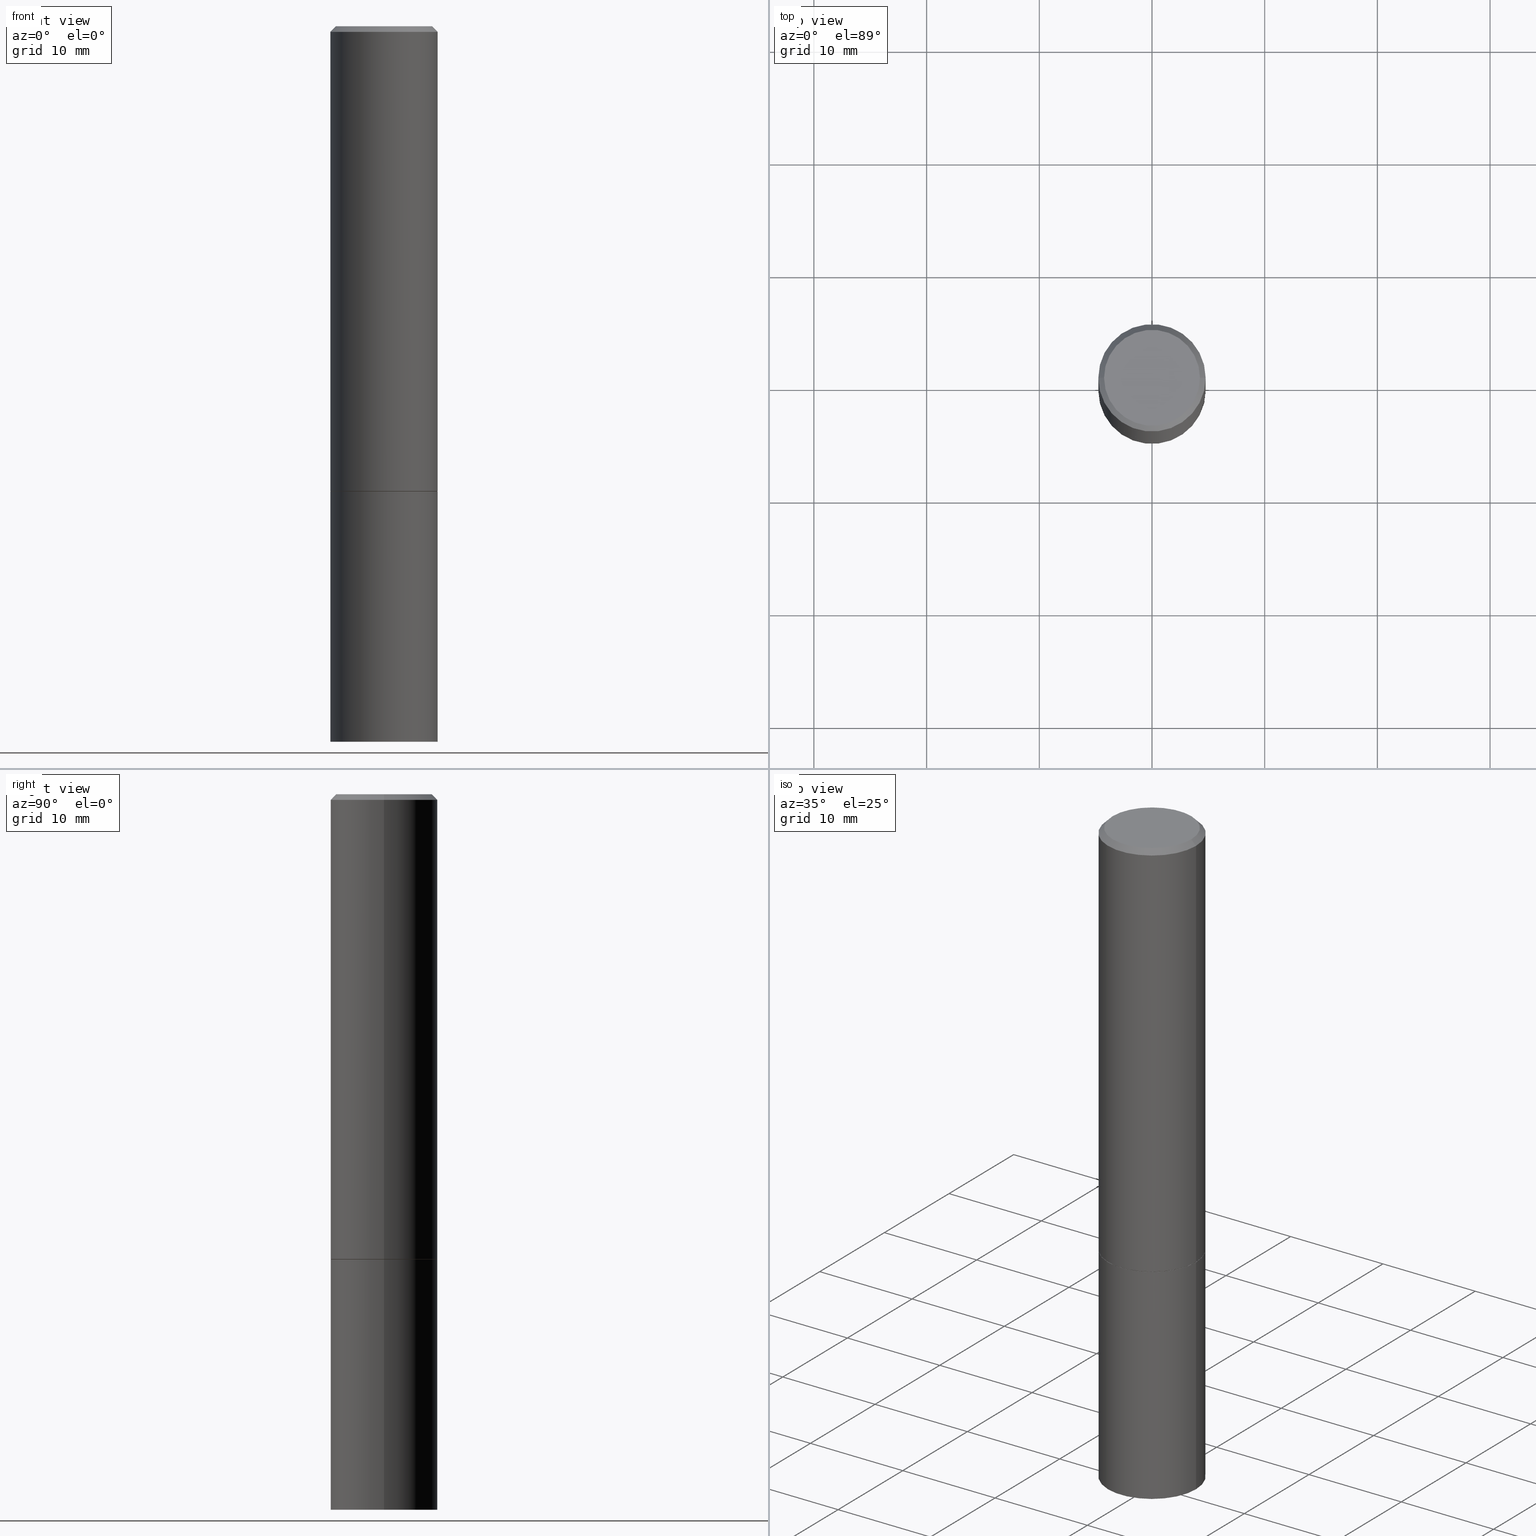
[diagram: canonical four-view strip — front | top / right | iso, engineering-drawing reading convention]
A machine part, canonical four-view strip (front | top / right | iso — engineering-drawing reading convention). The complete STEP part file that produces these views, byte-faithful:
ISO-10303-21;
HEADER;
FILE_DESCRIPTION (( 'STEP AP203' ),
    '1' );
FILE_NAME ('35309.STEP',
    '2024-02-27T18:35:04',
    ( '' ),
    ( '' ),
    'SwSTEP 2.0',
    'SolidWorks 2023',
    '' );
FILE_SCHEMA (( 'CONFIG_CONTROL_DESIGN' ));
ENDSEC;

DATA;
#1 = DATE_AND_TIME ( #145, #241 ) ;
#2 = FACE_OUTER_BOUND ( 'NONE', #92, .T. ) ;
#3 = UNCERTAINTY_MEASURE_WITH_UNIT (LENGTH_MEASURE( 1.000000000000000082E-05 ), #106, 'distance_accuracy_value', 'NONE');
#4 = ORIENTED_EDGE ( 'NONE', *, *, #20, .T. ) ;
#5 = DATE_TIME_ROLE ( 'classification_date' ) ;
#6 = EDGE_CURVE ( 'NONE', #249, #255, #78, .T. ) ;
#7 = ADVANCED_FACE ( 'NONE', ( #213 ), #359, .T. ) ;
#8 = CARTESIAN_POINT ( 'NONE',  ( 3.973886810050848091E-29, -5.673657175620113002E-15, -1.625000000000000222 ) ) ;
#9 = LOCAL_TIME ( 13, 35, 4.000000000000000000, #155 ) ;
#10 = APPROVAL_DATE_TIME ( #27, #267 ) ;
#11 = ORIENTED_EDGE ( 'NONE', *, *, #47, .F. ) ;
#12 = ORIENTED_EDGE ( 'NONE', *, *, #82, .T. ) ;
#13 = PERSON_AND_ORGANIZATION ( #200, #164 ) ;
#14 = EDGE_LOOP ( 'NONE', ( #125, #347, #124, #352 ) ) ;
#15 = DIRECTION ( 'NONE',  ( -2.445468806185136597E-29, 3.491481338843145583E-15, 1.000000000000000000 ) ) ;
#16 = ORIENTED_EDGE ( 'NONE', *, *, #82, .F. ) ;
#17 = CARTESIAN_POINT ( 'NONE',  ( 0.000000000000000000, 0.000000000000000000, 0.000000000000000000 ) ) ;
#18 = CONICAL_SURFACE ( 'NONE', #73, 0.1864999999999999714, 0.7853981633975678500 ) ;
#19 = EDGE_CURVE ( 'NONE', #255, #249, #295, .T. ) ;
#20 = EDGE_CURVE ( 'NONE', #196, #281, #22, .T. ) ;
#21 = APPLICATION_PROTOCOL_DEFINITION ( 'international standard', 'config_control_design', 1994, #350 ) ;
#22 = CIRCLE ( 'NONE', #206, 0.1875000000000000278 ) ;
#23 = VERTEX_POINT ( 'NONE', #72 ) ;
#24 = VERTEX_POINT ( 'NONE', #109 ) ;
#25 = DIRECTION ( 'NONE',  ( 1.000000000000000000, -6.982962677686266711E-15, 0.000000000000000000 ) ) ;
#26 = ADVANCED_FACE ( 'NONE', ( #301 ), #76, .F. ) ;
#27 = DATE_AND_TIME ( #279, #9 ) ;
#28 = AXIS2_PLACEMENT_3D ( 'NONE', #17, #68, #231 ) ;
#29 = LINE ( 'NONE', #256, #168 ) ;
#30 = FACE_OUTER_BOUND ( 'NONE', #115, .T. ) ;
#31 = APPROVAL ( #166, 'UNSPECIFIED' ) ;
#32 = EDGE_LOOP ( 'NONE', ( #12, #116 ) ) ;
#33 = VECTOR ( 'NONE', #210, 39.37007874015748143 ) ;
#34 = CC_DESIGN_APPROVAL ( #267, ( #230 ) ) ;
#35 = CARTESIAN_POINT ( 'NONE',  ( 3.973886810050846970E-29, -5.673657175620112213E-15, -1.625000000000000000 ) ) ;
#36 = DIRECTION ( 'NONE',  ( -0.7071067811866320607, 7.493145998870660238E-15, 0.7071067811864629737 ) ) ;
#37 = EDGE_LOOP ( 'NONE', ( #328, #147, #129, #235 ) ) ;
#38 = COORDINATED_UNIVERSAL_TIME_OFFSET ( 5, 0, .BEHIND. ) ;
#39 = AXIS2_PLACEMENT_3D ( 'NONE', #228, #15, #220 ) ;
#40 = DIRECTION ( 'NONE',  ( 1.000000000000000000, -6.982962677686265922E-15, 4.876176775795935793E-29 ) ) ;
#41 = ORIENTED_EDGE ( 'NONE', *, *, #121, .F. ) ;
#42 = ORIENTED_EDGE ( 'NONE', *, *, #251, .T. ) ;
#43 = FACE_OUTER_BOUND ( 'NONE', #104, .T. ) ;
#44 = CARTESIAN_POINT ( 'NONE',  ( 4.890937612370283668E-31, -6.982962677686305168E-17, -0.02000000000000004205 ) ) ;
#45 = AXIS2_PLACEMENT_3D ( 'NONE', #253, #364, #110 ) ;
#46 =( LENGTH_UNIT ( ) NAMED_UNIT ( * ) SI_UNIT ( $, .METRE. ) );
#47 = EDGE_CURVE ( 'NONE', #58, #317, #354, .T. ) ;
#48 = CARTESIAN_POINT ( 'NONE',  ( 0.1874999999999997780, -1.356173001359023691E-15, -0.02000000000000004205 ) ) ;
#49 = MANIFOLD_SOLID_BREP ( 'Body-Move/Copy2[2]', #117 ) ;
#50 = FACE_OUTER_BOUND ( 'NONE', #32, .T. ) ;
#51 = AXIS2_PLACEMENT_3D ( 'NONE', #44, #271, #105 ) ;
#52 = MANIFOLD_SOLID_BREP ( 'Body-Move/Copy2[1]', #96 ) ;
#53 = CARTESIAN_POINT ( 'NONE',  ( -0.1864999999999999714, -4.348494973427525372E-15, -1.625000000000000000 ) ) ;
#54 = APPROVAL_ROLE ( '' ) ;
#55 = CIRCLE ( 'NONE', #304, 0.1875000000000000278 ) ;
#56 = APPROVAL_PERSON_ORGANIZATION ( #222, #31, #260 ) ;
#57 = LINE ( 'NONE', #250, #264 ) ;
#58 = VERTEX_POINT ( 'NONE', #134 ) ;
#59 = VERTEX_POINT ( 'NONE', #207 ) ;
#60 = CYLINDRICAL_SURFACE ( 'NONE', #309, 0.1875000000000000278 ) ;
#61 = ADVANCED_FACE ( 'NONE', ( #50 ), #326, .F. ) ;
#62 = CIRCLE ( 'NONE', #355, 0.1674999999999997879 ) ;
#63 = APPROVAL ( #322, 'UNSPECIFIED' ) ;
#64 = PLANE ( 'NONE',  #84 ) ;
#65 = AXIS2_PLACEMENT_3D ( 'NONE', #142, #219, #283 ) ;
#66 = CONICAL_SURFACE ( 'NONE', #366, 0.1864999999999999714, 0.7853981633975678500 ) ;
#67 = CC_DESIGN_PERSON_AND_ORGANIZATION_ASSIGNMENT ( #188, #286, ( #358 ) ) ;
#68 = DIRECTION ( 'NONE',  ( 0.000000000000000000, 0.000000000000000000, 1.000000000000000000 ) ) ;
#69 = ORIENTED_EDGE ( 'NONE', *, *, #333, .F. ) ;
#70 = APPROVAL_ROLE ( '' ) ;
#71 = EDGE_CURVE ( 'NONE', #331, #58, #62, .T. ) ;
#72 = CARTESIAN_POINT ( 'NONE',  ( -0.1874999999999999722, -1.537730030978877023E-15, -1.624000000000000110 ) ) ;
#73 = AXIS2_PLACEMENT_3D ( 'NONE', #35, #312, #193 ) ;
#74 = CARTESIAN_POINT ( 'NONE',  ( 1.169646248512448215E-15, 0.1674999999999997879, -5.848231242562260795E-16 ) ) ;
#75 = DIRECTION ( 'NONE',  ( 1.000000000000000000, -6.982962677686269077E-15, 0.000000000000000000 ) ) ;
#76 = PLANE ( 'NONE',  #365 ) ;
#77 = ORIENTED_EDGE ( 'NONE', *, *, #175, .T. ) ;
#78 = CIRCLE ( 'NONE', #137, 0.1864999999999999714 ) ;
#79 = DIRECTION ( 'NONE',  ( -2.445468806185136597E-29, 3.491481338843145583E-15, 1.000000000000000000 ) ) ;
#80 = CARTESIAN_POINT ( 'NONE',  ( 6.113672015462842613E-29, -8.728703347107864943E-15, -2.500000000000000000 ) ) ;
#81 = COORDINATED_UNIVERSAL_TIME_OFFSET ( 5, 0, .BEHIND. ) ;
#82 = EDGE_CURVE ( 'NONE', #202, #268, #55, .T. ) ;
#83 = DIRECTION ( 'NONE',  ( 1.000000000000000000, -6.982962677686266711E-15, 0.000000000000000000 ) ) ;
#84 = AXIS2_PLACEMENT_3D ( 'NONE', #346, #169, #146 ) ;
#85 = CC_DESIGN_APPROVAL ( #63, ( #358 ) ) ;
#86 = LINE ( 'NONE', #156, #348 ) ;
#87 = SHAPE_DEFINITION_REPRESENTATION ( #221, #273 ) ;
#88 = DIRECTION ( 'NONE',  ( -2.445468806185136597E-29, 3.491481338843145583E-15, 1.000000000000000000 ) ) ;
#89 = CIRCLE ( 'NONE', #51, 0.1874999999999997780 ) ;
#90 = CARTESIAN_POINT ( 'NONE',  ( 0.1864999999999999714, -6.975979715008601207E-15, -1.625000000000000000 ) ) ;
#91 = PERSON_AND_ORGANIZATION ( #200, #164 ) ;
#92 = EDGE_LOOP ( 'NONE', ( #351, #198, #160, #99 ) ) ;
#93 = COORDINATED_UNIVERSAL_TIME_OFFSET ( 5, 0, .BEHIND. ) ;
#94 = ORIENTED_EDGE ( 'NONE', *, *, #19, .T. ) ;
#95 = CARTESIAN_POINT ( 'NONE',  ( -0.1875000000000000278, -5.868912631813800729E-15, -1.625000000000000222 ) ) ;
#96 = CLOSED_SHELL ( 'NONE', ( #176, #252, #61, #111 ) ) ;
#97 =( GEOMETRIC_REPRESENTATION_CONTEXT ( 3 ) GLOBAL_UNCERTAINTY_ASSIGNED_CONTEXT ( ( #3 ) ) GLOBAL_UNIT_ASSIGNED_CONTEXT ( ( #106, #269, #179 ) ) REPRESENTATION_CONTEXT ( 'NONE', 'WORKASPACE' ) );
#98 = DESIGN_CONTEXT ( 'detailed design', #247, 'design' ) ;
#99 = ORIENTED_EDGE ( 'NONE', *, *, #293, .F. ) ;
#100 = CARTESIAN_POINT ( 'NONE',  ( 3.973886810050848091E-29, -5.673657175620113002E-15, -1.625000000000000222 ) ) ;
#101 = DIRECTION ( 'NONE',  ( 1.000000000000000000, -6.982962677686269077E-15, 0.000000000000000000 ) ) ;
#102 = DIRECTION ( 'NONE',  ( -2.445468806185136877E-29, 3.491481338843145188E-15, 1.000000000000000000 ) ) ;
#103 = DIRECTION ( 'NONE',  ( -2.445468806185136597E-29, 3.491481338843145583E-15, 1.000000000000000000 ) ) ;
#104 = EDGE_LOOP ( 'NONE', ( #237, #234 ) ) ;
#105 = DIRECTION ( 'NONE',  ( 1.000000000000000000, -6.982962677686265133E-15, 0.000000000000000000 ) ) ;
#106 =( CONVERSION_BASED_UNIT ( 'INCH', #300 ) LENGTH_UNIT ( ) NAMED_UNIT ( #285 ) );
#107 = CARTESIAN_POINT ( 'NONE',  ( 3.973886810050846970E-29, -5.673657175620112213E-15, -1.625000000000000000 ) ) ;
#108 = APPROVAL_STATUS ( 'not_yet_approved' ) ;
#109 = CARTESIAN_POINT ( 'NONE',  ( -0.1874999999999997780, 1.239475875289310330E-15, -0.02000000000000004205 ) ) ;
#110 = DIRECTION ( 'NONE',  ( 1.000000000000000000, -6.982962677686265133E-15, 0.000000000000000000 ) ) ;
#111 = ADVANCED_FACE ( 'NONE', ( #30 ), #337, .T. ) ;
#112 = ORIENTED_EDGE ( 'NONE', *, *, #126, .T. ) ;
#113 = LINE ( 'NONE', #53, #282 ) ;
#114 = AXIS2_PLACEMENT_3D ( 'NONE', #100, #178, #172 ) ;
#115 = EDGE_LOOP ( 'NONE', ( #41, #302, #130, #165 ) ) ;
#116 = ORIENTED_EDGE ( 'NONE', *, *, #323, .T. ) ;
#117 = CLOSED_SHELL ( 'NONE', ( #345, #7, #144, #236, #284, #154, #217, #26 ) ) ;
#118 = LINE ( 'NONE', #170, #131 ) ;
#119 = EDGE_LOOP ( 'NONE', ( #148, #112 ) ) ;
#120 = SECURITY_CLASSIFICATION_LEVEL ( 'unclassified' ) ;
#121 = EDGE_CURVE ( 'NONE', #281, #268, #86, .T. ) ;
#122 = FACE_OUTER_BOUND ( 'NONE', #232, .T. ) ;
#123 = PERSON_AND_ORGANIZATION ( #200, #164 ) ;
#124 = ORIENTED_EDGE ( 'NONE', *, *, #307, .F. ) ;
#125 = ORIENTED_EDGE ( 'NONE', *, *, #136, .T. ) ;
#126 = EDGE_CURVE ( 'NONE', #58, #331, #212, .T. ) ;
#127 = EDGE_LOOP ( 'NONE', ( #353, #94, #77, #296 ) ) ;
#128 = LINE ( 'NONE', #243, #33 ) ;
#129 = ORIENTED_EDGE ( 'NONE', *, *, #136, .F. ) ;
#130 = ORIENTED_EDGE ( 'NONE', *, *, #182, .T. ) ;
#131 = VECTOR ( 'NONE', #291, 39.37007874015748143 ) ;
#132 = CARTESIAN_POINT ( 'NONE',  ( 0.000000000000000000, 0.000000000000000000, 0.000000000000000000 ) ) ;
#133 = PERSON_AND_ORGANIZATION ( #200, #164 ) ;
#134 = CARTESIAN_POINT ( 'NONE',  ( 0.1674999999999997879, -1.252653207992876908E-15, 8.469775550109228175E-30 ) ) ;
#135 = DIRECTION ( 'NONE',  ( 1.000000000000000000, -6.982962677686269077E-15, 0.000000000000000000 ) ) ;
#136 = EDGE_CURVE ( 'NONE', #59, #23, #186, .T. ) ;
#137 = AXIS2_PLACEMENT_3D ( 'NONE', #238, #272, #135 ) ;
#138 = CARTESIAN_POINT ( 'NONE',  ( 0.1875000000000000278, -6.982962677686288010E-15, -1.625000000000000222 ) ) ;
#139 = DIRECTION ( 'NONE',  ( 0.7071067811866320607, -2.468850131083142557E-15, 0.7071067811864629737 ) ) ;
#140 = EDGE_LOOP ( 'NONE', ( #338, #292 ) ) ;
#141 = AXIS2_PLACEMENT_3D ( 'NONE', #177, #299, #275 ) ;
#142 = CARTESIAN_POINT ( 'NONE',  ( 0.000000000000000000, 0.000000000000000000, 0.000000000000000000 ) ) ;
#143 = ORIENTED_EDGE ( 'NONE', *, *, #182, .F. ) ;
#144 = ADVANCED_FACE ( 'NONE', ( #2 ), #229, .T. ) ;
#145 = CALENDAR_DATE ( 2024, 27, 2 ) ;
#146 = DIRECTION ( 'NONE',  ( -1.000000000000000000, 6.982962677686265922E-15, -4.876176775795935793E-29 ) ) ;
#147 = ORIENTED_EDGE ( 'NONE', *, *, #205, .T. ) ;
#148 = ORIENTED_EDGE ( 'NONE', *, *, #71, .T. ) ;
#149 = FACE_OUTER_BOUND ( 'NONE', #140, .T. ) ;
#150 = AXIS2_PLACEMENT_3D ( 'NONE', #310, #190, #218 ) ;
#151 = ORIENTED_EDGE ( 'NONE', *, *, #270, .T. ) ;
#152 = DIRECTION ( 'NONE',  ( 1.000000000000000000, -6.982962677686265922E-15, 4.876176775795935793E-29 ) ) ;
#153 = CARTESIAN_POINT ( 'NONE',  ( 3.973886810050848091E-29, -5.673657175620113002E-15, -1.625000000000000222 ) ) ;
#154 = ADVANCED_FACE ( 'NONE', ( #246 ), #18, .T. ) ;
#155 = COORDINATED_UNIVERSAL_TIME_OFFSET ( 5, 0, .BEHIND. ) ;
#156 = CARTESIAN_POINT ( 'NONE',  ( -0.1875000000000000278, 1.332267629550188046E-15, -9.223003294227947991E-30 ) ) ;
#157 = CC_DESIGN_PERSON_AND_ORGANIZATION_ASSIGNMENT ( #133, #201, ( #290 ) ) ;
#158 = ORIENTED_EDGE ( 'NONE', *, *, #167, .F. ) ;
#159 = DIRECTION ( 'NONE',  ( -2.445468806185136877E-29, 3.491481338843145188E-15, 1.000000000000000000 ) ) ;
#160 = ORIENTED_EDGE ( 'NONE', *, *, #307, .T. ) ;
#161 = CC_DESIGN_PERSON_AND_ORGANIZATION_ASSIGNMENT ( #13, #318, ( #230 ) ) ;
#162 = PERSON_AND_ORGANIZATION_ROLE ( 'creator' ) ;
#163 = AXIS2_PLACEMENT_3D ( 'NONE', #340, #189, #83 ) ;
#164 = ORGANIZATION ( 'UNSPECIFIED', 'UNSPECIFIED', '' ) ;
#165 = ORIENTED_EDGE ( 'NONE', *, *, #323, .F. ) ;
#166 = APPROVAL_STATUS ( 'not_yet_approved' ) ;
#167 = EDGE_CURVE ( 'NONE', #24, #317, #361, .T. ) ;
#168 = VECTOR ( 'NONE', #139, 39.37007874015748143 ) ;
#169 = DIRECTION ( 'NONE',  ( 2.438088387897960049E-29, -3.491481338843145188E-15, -1.000000000000000000 ) ) ;
#170 = CARTESIAN_POINT ( 'NONE',  ( 0.1874999999999999167, -1.309305502066174219E-15, 9.142831454617375408E-30 ) ) ;
#171 = DIRECTION ( 'NONE',  ( -2.445468806185136597E-29, 3.491481338843145583E-15, 1.000000000000000000 ) ) ;
#172 = DIRECTION ( 'NONE',  ( 1.000000000000000000, -6.982962677686266711E-15, 0.000000000000000000 ) ) ;
#173 = ORIENTED_EDGE ( 'NONE', *, *, #293, .T. ) ;
#174 = DIRECTION ( 'NONE',  ( -2.445468806185136597E-29, 3.491481338843145583E-15, 1.000000000000000000 ) ) ;
#175 = EDGE_CURVE ( 'NONE', #249, #59, #29, .T. ) ;
#176 = ADVANCED_FACE ( 'NONE', ( #185 ), #60, .T. ) ;
#177 = CARTESIAN_POINT ( 'NONE',  ( 1.309305502066214846E-15, 0.1874999999999943379, -1.625000000000000888 ) ) ;
#178 = DIRECTION ( 'NONE',  ( -2.445468806185136597E-29, 3.491481338843145583E-15, 1.000000000000000000 ) ) ;
#179 =( NAMED_UNIT ( * ) SI_UNIT ( $, .STERADIAN. ) SOLID_ANGLE_UNIT ( ) );
#180 = AXIS2_PLACEMENT_3D ( 'NONE', #8, #226, #40 ) ;
#181 = CC_DESIGN_SECURITY_CLASSIFICATION ( #316, ( #230 ) ) ;
#182 = EDGE_CURVE ( 'NONE', #196, #202, #57, .T. ) ;
#183 = DIRECTION ( 'NONE',  ( -1.000000000000000000, 6.982962677686265922E-15, -4.876176775795935793E-29 ) ) ;
#184 = DIRECTION ( 'NONE',  ( -2.445468806185136597E-29, 3.491481338843145583E-15, 1.000000000000000000 ) ) ;
#185 = FACE_OUTER_BOUND ( 'NONE', #261, .T. ) ;
#186 = CIRCLE ( 'NONE', #163, 0.1875000000000000278 ) ;
#187 = AXIS2_PLACEMENT_3D ( 'NONE', #107, #103, #101 ) ;
#188 = PERSON_AND_ORGANIZATION ( #200, #164 ) ;
#189 = DIRECTION ( 'NONE',  ( -2.445468806185136597E-29, 3.491481338843145583E-15, 1.000000000000000000 ) ) ;
#190 = DIRECTION ( 'NONE',  ( 2.445468806185136597E-29, -3.491481338843145583E-15, -1.000000000000000000 ) ) ;
#191 = EDGE_LOOP ( 'NONE', ( #69, #42, #151, #158 ) ) ;
#192 = DIRECTION ( 'NONE',  ( -1.000000000000000000, 6.982962677686265133E-15, 0.000000000000000000 ) ) ;
#193 = DIRECTION ( 'NONE',  ( 1.000000000000000000, -6.982962677686269077E-15, 0.000000000000000000 ) ) ;
#194 = CONICAL_SURFACE ( 'NONE', #356, 0.1874999999999997780, 0.7853981633974471688 ) ;
#195 = EDGE_CURVE ( 'NONE', #281, #196, #289, .T. ) ;
#196 = VERTEX_POINT ( 'NONE', #308 ) ;
#197 = CYLINDRICAL_SURFACE ( 'NONE', #339, 0.1874999999999999167 ) ;
#198 = ORIENTED_EDGE ( 'NONE', *, *, #47, .T. ) ;
#199 = CALENDAR_DATE ( 2024, 27, 2 ) ;
#200 = PERSON ( 'UNSPECIFIED', 'UNSPECIFIED', 'UNSPECIFIED', ('UNSPECIFIED'), ('UNSPECIFIED'), ('UNSPECIFIED') ) ;
#201 = PERSON_AND_ORGANIZATION_ROLE ( 'design_owner' ) ;
#202 = VERTEX_POINT ( 'NONE', #138 ) ;
#203 = PERSON_AND_ORGANIZATION ( #200, #164 ) ;
#204 = CARTESIAN_POINT ( 'NONE',  ( 6.113672015462842613E-29, -8.728703347107864943E-15, -2.500000000000000000 ) ) ;
#205 = EDGE_CURVE ( 'NONE', #255, #23, #113, .T. ) ;
#206 = AXIS2_PLACEMENT_3D ( 'NONE', #204, #79, #324 ) ;
#207 = CARTESIAN_POINT ( 'NONE',  ( 0.1875000000000000278, -6.979471196347444214E-15, -1.624000000000000110 ) ) ;
#208 = LINE ( 'NONE', #329, #321 ) ;
#209 = DIRECTION ( 'NONE',  ( 1.000000000000000000, -6.982962677686266711E-15, 4.876176775795935793E-29 ) ) ;
#210 = DIRECTION ( 'NONE',  ( -0.7071067811865466846, 2.468850131082247989E-15, -0.7071067811865483499 ) ) ;
#211 = PRODUCT_RELATED_PRODUCT_CATEGORY ( 'detail', '', ( #290 ) ) ;
#212 = CIRCLE ( 'NONE', #315, 0.1674999999999997879 ) ;
#213 = FACE_OUTER_BOUND ( 'NONE', #14, .T. ) ;
#214 = LOCAL_TIME ( 13, 35, 4.000000000000000000, #38 ) ;
#215 = CARTESIAN_POINT ( 'NONE',  ( 0.000000000000000000, 0.000000000000000000, 0.000000000000000000 ) ) ;
#216 = DIRECTION ( 'NONE',  ( 1.000000000000000000, -6.982962677686266711E-15, 0.000000000000000000 ) ) ;
#217 = ADVANCED_FACE ( 'NONE', ( #149 ), #263, .F. ) ;
#218 = DIRECTION ( 'NONE',  ( -1.000000000000000000, 6.982962677686265133E-15, 0.000000000000000000 ) ) ;
#219 = DIRECTION ( 'NONE',  ( -2.445468806185136597E-29, 3.491481338843145583E-15, 1.000000000000000000 ) ) ;
#220 = DIRECTION ( 'NONE',  ( 1.000000000000000000, -6.982962677686266711E-15, 0.000000000000000000 ) ) ;
#221 = PRODUCT_DEFINITION_SHAPE ( 'NONE', 'NONE',  #358 ) ;
#222 = PERSON_AND_ORGANIZATION ( #200, #164 ) ;
#223 = AXIS2_PLACEMENT_3D ( 'NONE', #132, #298, #152 ) ;
#224 = LOCAL_TIME ( 13, 35, 4.000000000000000000, #81 ) ;
#225 = CARTESIAN_POINT ( 'NONE',  ( -0.1875000000000000278, -5.868912631813800729E-15, -2.500000000000000000 ) ) ;
#226 = DIRECTION ( 'NONE',  ( -2.438088387897960049E-29, 3.491481338843145188E-15, 1.000000000000000000 ) ) ;
#227 = PERSON_AND_ORGANIZATION_ROLE ( 'classification_officer' ) ;
#228 = CARTESIAN_POINT ( 'NONE',  ( 3.971441341244662488E-29, -5.670165694281269206E-15, -1.624000000000000110 ) ) ;
#229 = CONICAL_SURFACE ( 'NONE', #150, 0.1874999999999997780, 0.7853981633974471688 ) ;
#230 = PRODUCT_DEFINITION_FORMATION_WITH_SPECIFIED_SOURCE ( 'ANY', '', #290, .NOT_KNOWN. ) ;
#231 = DIRECTION ( 'NONE',  ( 1.000000000000000000, 0.000000000000000000, 0.000000000000000000 ) ) ;
#232 = EDGE_LOOP ( 'NONE', ( #11, #313, #173, #233 ) ) ;
#233 = ORIENTED_EDGE ( 'NONE', *, *, #167, .T. ) ;
#234 = ORIENTED_EDGE ( 'NONE', *, *, #195, .F. ) ;
#235 = ORIENTED_EDGE ( 'NONE', *, *, #175, .F. ) ;
#236 = ADVANCED_FACE ( 'NONE', ( #122 ), #194, .T. ) ;
#237 = ORIENTED_EDGE ( 'NONE', *, *, #20, .F. ) ;
#238 = CARTESIAN_POINT ( 'NONE',  ( 3.973886810050846970E-29, -5.673657175620112213E-15, -1.625000000000000000 ) ) ;
#239 = VECTOR ( 'NONE', #306, 39.37007874015748143 ) ;
#240 = APPROVAL_PERSON_ORGANIZATION ( #203, #63, #70 ) ;
#241 = LOCAL_TIME ( 13, 35, 4.000000000000000000, #93 ) ;
#242 = CARTESIAN_POINT ( 'NONE',  ( 0.000000000000000000, 0.000000000000000000, 0.000000000000000000 ) ) ;
#243 = CARTESIAN_POINT ( 'NONE',  ( -0.1874999999999997780, 1.239475875289310330E-15, -0.02000000000000004205 ) ) ;
#244 = PERSON_AND_ORGANIZATION ( #200, #164 ) ;
#245 = CIRCLE ( 'NONE', #39, 0.1875000000000000278 ) ;
#246 = FACE_OUTER_BOUND ( 'NONE', #127, .T. ) ;
#247 = APPLICATION_CONTEXT ( 'configuration controlled 3d designs of mechanical parts and assemblies' ) ;
#248 = COORDINATED_UNIVERSAL_TIME_OFFSET ( 5, 0, .BEHIND. ) ;
#249 = VERTEX_POINT ( 'NONE', #90 ) ;
#250 = CARTESIAN_POINT ( 'NONE',  ( 0.1875000000000000278, -1.309305502066175008E-15, 9.142831454617381013E-30 ) ) ;
#251 = EDGE_CURVE ( 'NONE', #23, #59, #245, .T. ) ;
#252 = ADVANCED_FACE ( 'NONE', ( #43 ), #64, .T. ) ;
#253 = CARTESIAN_POINT ( 'NONE',  ( 4.890937612370283668E-31, -6.982962677686305168E-17, -0.02000000000000004205 ) ) ;
#254 = CALENDAR_DATE ( 2024, 27, 2 ) ;
#255 = VERTEX_POINT ( 'NONE', #314 ) ;
#256 = CARTESIAN_POINT ( 'NONE',  ( 0.1864999999999999714, -6.975979715008601207E-15, -1.625000000000000000 ) ) ;
#257 = CIRCLE ( 'NONE', #114, 0.1875000000000000278 ) ;
#258 = DIRECTION ( 'NONE',  ( 1.000000000000000000, -6.982962677686266711E-15, 4.876176775795935793E-29 ) ) ;
#259 = CC_DESIGN_DATE_AND_TIME_ASSIGNMENT ( #311, #330, ( #358 ) ) ;
#260 = APPROVAL_ROLE ( '' ) ;
#261 = EDGE_LOOP ( 'NONE', ( #4, #343, #16, #143 ) ) ;
#262 = DIRECTION ( 'NONE',  ( 2.445468806185136597E-29, -3.491481338843145583E-15, -1.000000000000000000 ) ) ;
#263 = PLANE ( 'NONE',  #180 ) ;
#264 = VECTOR ( 'NONE', #159, 39.37007874015748143 ) ;
#265 = CC_DESIGN_APPROVAL ( #31, ( #316 ) ) ;
#266 = FACE_OUTER_BOUND ( 'NONE', #191, .T. ) ;
#267 = APPROVAL ( #108, 'UNSPECIFIED' ) ;
#268 = VERTEX_POINT ( 'NONE', #95 ) ;
#269 =( NAMED_UNIT ( * ) PLANE_ANGLE_UNIT ( ) SI_UNIT ( $, .RADIAN. ) );
#270 = EDGE_CURVE ( 'NONE', #59, #317, #118, .T. ) ;
#271 = DIRECTION ( 'NONE',  ( -2.445468806185136597E-29, 3.491481338843145583E-15, 1.000000000000000000 ) ) ;
#272 = DIRECTION ( 'NONE',  ( -2.445468806185136597E-29, 3.491481338843145583E-15, 1.000000000000000000 ) ) ;
#273 = ADVANCED_BREP_SHAPE_REPRESENTATION ( '35309', ( #52, #49, #28 ), #97 ) ;
#274 = CARTESIAN_POINT ( 'NONE',  ( 0.1874999999999997780, -1.356173001359023691E-15, -0.02000000000000004205 ) ) ;
#275 = DIRECTION ( 'NONE',  ( -1.000000000000000000, 6.982962677686265922E-15, -4.876176775795935793E-29 ) ) ;
#276 = APPLICATION_PROTOCOL_DEFINITION ( 'international standard', 'config_control_design', 1994, #247 ) ;
#277 = AXIS2_PLACEMENT_3D ( 'NONE', #80, #184, #216 ) ;
#278 = DIRECTION ( 'NONE',  ( -2.445468806185136597E-29, 3.491481338843145583E-15, 1.000000000000000000 ) ) ;
#279 = CALENDAR_DATE ( 2024, 27, 2 ) ;
#280 = CARTESIAN_POINT ( 'NONE',  ( 0.000000000000000000, 0.000000000000000000, 0.000000000000000000 ) ) ;
#281 = VERTEX_POINT ( 'NONE', #225 ) ;
#282 = VECTOR ( 'NONE', #36, 39.37007874015748143 ) ;
#283 = DIRECTION ( 'NONE',  ( 1.000000000000000000, -6.982962677686265922E-15, 4.876176775795935793E-29 ) ) ;
#284 = ADVANCED_FACE ( 'NONE', ( #266 ), #197, .T. ) ;
#285 = DIMENSIONAL_EXPONENTS ( 1.000000000000000000, 0.000000000000000000, 0.000000000000000000, 0.000000000000000000, 0.000000000000000000, 0.000000000000000000, 0.000000000000000000 ) ;
#286 = PERSON_AND_ORGANIZATION_ROLE ( 'creator' ) ;
#287 = DATE_AND_TIME ( #199, #214 ) ;
#288 = DIRECTION ( 'NONE',  ( -2.445468806185136877E-29, 3.491481338843145188E-15, 1.000000000000000000 ) ) ;
#289 = CIRCLE ( 'NONE', #277, 0.1875000000000000278 ) ;
#290 = PRODUCT ( '35309', '35309', '', ( #349 ) ) ;
#291 = DIRECTION ( 'NONE',  ( -2.445468806185136877E-29, 3.491481338843145188E-15, 1.000000000000000000 ) ) ;
#292 = ORIENTED_EDGE ( 'NONE', *, *, #19, .F. ) ;
#293 = EDGE_CURVE ( 'NONE', #331, #24, #128, .T. ) ;
#294 = CC_DESIGN_DATE_AND_TIME_ASSIGNMENT ( #1, #5, ( #316 ) ) ;
#295 = CIRCLE ( 'NONE', #187, 0.1864999999999999714 ) ;
#296 = ORIENTED_EDGE ( 'NONE', *, *, #251, .F. ) ;
#297 = DIRECTION ( 'NONE',  ( 1.000000000000000000, -6.982962677686265922E-15, 4.876176775795935793E-29 ) ) ;
#298 = DIRECTION ( 'NONE',  ( -2.445468806185136597E-29, 3.491481338843145583E-15, 1.000000000000000000 ) ) ;
#299 = DIRECTION ( 'NONE',  ( 2.438088387897960049E-29, -3.491481338843145188E-15, -1.000000000000000000 ) ) ;
#300 = LENGTH_MEASURE_WITH_UNIT ( LENGTH_MEASURE( 0.02539999999999999897 ), #46 );
#301 = FACE_OUTER_BOUND ( 'NONE', #119, .T. ) ;
#302 = ORIENTED_EDGE ( 'NONE', *, *, #195, .T. ) ;
#303 = CARTESIAN_POINT ( 'NONE',  ( -0.1674999999999997879, 1.204561061900879272E-15, -8.301862719484101980E-30 ) ) ;
#304 = AXIS2_PLACEMENT_3D ( 'NONE', #153, #278, #25 ) ;
#305 = LOCAL_TIME ( 13, 35, 4.000000000000000000, #248 ) ;
#306 = DIRECTION ( 'NONE',  ( 0.7071067811865466846, -7.319954787623252890E-15, -0.7071067811865483499 ) ) ;
#307 = EDGE_CURVE ( 'NONE', #317, #24, #89, .T. ) ;
#308 = CARTESIAN_POINT ( 'NONE',  ( 0.1875000000000000278, -1.003800884917403995E-14, -2.500000000000000000 ) ) ;
#309 = AXIS2_PLACEMENT_3D ( 'NONE', #215, #88, #334 ) ;
#310 = CARTESIAN_POINT ( 'NONE',  ( 4.890937612370283668E-31, -6.982962677686305168E-17, -0.02000000000000004205 ) ) ;
#311 = DATE_AND_TIME ( #254, #224 ) ;
#312 = DIRECTION ( 'NONE',  ( -2.445468806185136597E-29, 3.491481338843145583E-15, 1.000000000000000000 ) ) ;
#313 = ORIENTED_EDGE ( 'NONE', *, *, #71, .F. ) ;
#314 = CARTESIAN_POINT ( 'NONE',  ( -0.1864999999999999714, -4.343196519079303759E-15, -1.625000000000000000 ) ) ;
#315 = AXIS2_PLACEMENT_3D ( 'NONE', #280, #342, #258 ) ;
#316 = SECURITY_CLASSIFICATION ( '', '', #120 ) ;
#317 = VERTEX_POINT ( 'NONE', #274 ) ;
#318 = PERSON_AND_ORGANIZATION_ROLE ( 'design_supplier' ) ;
#319 = CARTESIAN_POINT ( 'NONE',  ( 0.000000000000000000, 0.000000000000000000, 0.000000000000000000 ) ) ;
#320 = CARTESIAN_POINT ( 'NONE',  ( 4.890937612370283668E-31, -6.982962677686305168E-17, -0.02000000000000004205 ) ) ;
#321 = VECTOR ( 'NONE', #102, 39.37007874015748143 ) ;
#322 = APPROVAL_STATUS ( 'not_yet_approved' ) ;
#323 = EDGE_CURVE ( 'NONE', #268, #202, #257, .T. ) ;
#324 = DIRECTION ( 'NONE',  ( 1.000000000000000000, -6.982962677686266711E-15, 0.000000000000000000 ) ) ;
#325 = FACE_OUTER_BOUND ( 'NONE', #37, .T. ) ;
#326 = PLANE ( 'NONE',  #141 ) ;
#327 = CARTESIAN_POINT ( 'NONE',  ( 3.973886810050846970E-29, -5.673657175620112213E-15, -1.625000000000000000 ) ) ;
#328 = ORIENTED_EDGE ( 'NONE', *, *, #6, .T. ) ;
#329 = CARTESIAN_POINT ( 'NONE',  ( -0.1874999999999999167, 1.332267629550187257E-15, -9.223003294227943787E-30 ) ) ;
#330 = DATE_TIME_ROLE ( 'creation_date' ) ;
#331 = VERTEX_POINT ( 'NONE', #303 ) ;
#332 = DIRECTION ( 'NONE',  ( 2.438088387897960049E-29, -3.491481338843145188E-15, -1.000000000000000000 ) ) ;
#333 = EDGE_CURVE ( 'NONE', #23, #24, #208, .T. ) ;
#334 = DIRECTION ( 'NONE',  ( 1.000000000000000000, -6.982962677686265922E-15, 4.876176775795935793E-29 ) ) ;
#335 = CC_DESIGN_PERSON_AND_ORGANIZATION_ASSIGNMENT ( #91, #162, ( #230 ) ) ;
#336 = CALENDAR_DATE ( 2024, 27, 2 ) ;
#337 = CYLINDRICAL_SURFACE ( 'NONE', #65, 0.1875000000000000278 ) ;
#338 = ORIENTED_EDGE ( 'NONE', *, *, #6, .F. ) ;
#339 = AXIS2_PLACEMENT_3D ( 'NONE', #319, #174, #297 ) ;
#340 = CARTESIAN_POINT ( 'NONE',  ( 3.971441341244662488E-29, -5.670165694281269206E-15, -1.624000000000000110 ) ) ;
#341 = APPROVAL_DATE_TIME ( #287, #31 ) ;
#342 = DIRECTION ( 'NONE',  ( -2.445468806185136597E-29, 3.491481338843145583E-15, 1.000000000000000000 ) ) ;
#343 = ORIENTED_EDGE ( 'NONE', *, *, #121, .T. ) ;
#344 = APPROVAL_PERSON_ORGANIZATION ( #244, #267, #54 ) ;
#345 = ADVANCED_FACE ( 'NONE', ( #325 ), #66, .T. ) ;
#346 = CARTESIAN_POINT ( 'NONE',  ( 1.309305502066236145E-15, 0.1874999999999912847, -2.500000000000000444 ) ) ;
#347 = ORIENTED_EDGE ( 'NONE', *, *, #333, .T. ) ;
#348 = VECTOR ( 'NONE', #288, 39.37007874015748143 ) ;
#349 = MECHANICAL_CONTEXT ( 'NONE', #350, 'mechanical' ) ;
#350 = APPLICATION_CONTEXT ( 'configuration controlled 3d designs of mechanical parts and assemblies' ) ;
#351 = ORIENTED_EDGE ( 'NONE', *, *, #126, .F. ) ;
#352 = ORIENTED_EDGE ( 'NONE', *, *, #270, .F. ) ;
#353 = ORIENTED_EDGE ( 'NONE', *, *, #205, .F. ) ;
#354 = LINE ( 'NONE', #48, #239 ) ;
#355 = AXIS2_PLACEMENT_3D ( 'NONE', #242, #357, #209 ) ;
#356 = AXIS2_PLACEMENT_3D ( 'NONE', #320, #262, #192 ) ;
#357 = DIRECTION ( 'NONE',  ( -2.445468806185136597E-29, 3.491481338843145583E-15, 1.000000000000000000 ) ) ;
#358 = PRODUCT_DEFINITION ( 'UNKNOWN', '', #230, #98 ) ;
#359 = CYLINDRICAL_SURFACE ( 'NONE', #223, 0.1874999999999999167 ) ;
#360 = DATE_AND_TIME ( #336, #305 ) ;
#361 = CIRCLE ( 'NONE', #45, 0.1874999999999997780 ) ;
#362 = CC_DESIGN_PERSON_AND_ORGANIZATION_ASSIGNMENT ( #123, #227, ( #316 ) ) ;
#363 = APPROVAL_DATE_TIME ( #360, #63 ) ;
#364 = DIRECTION ( 'NONE',  ( -2.445468806185136597E-29, 3.491481338843145583E-15, 1.000000000000000000 ) ) ;
#365 = AXIS2_PLACEMENT_3D ( 'NONE', #74, #332, #183 ) ;
#366 = AXIS2_PLACEMENT_3D ( 'NONE', #327, #171, #75 ) ;
ENDSEC;
END-ISO-10303-21;
